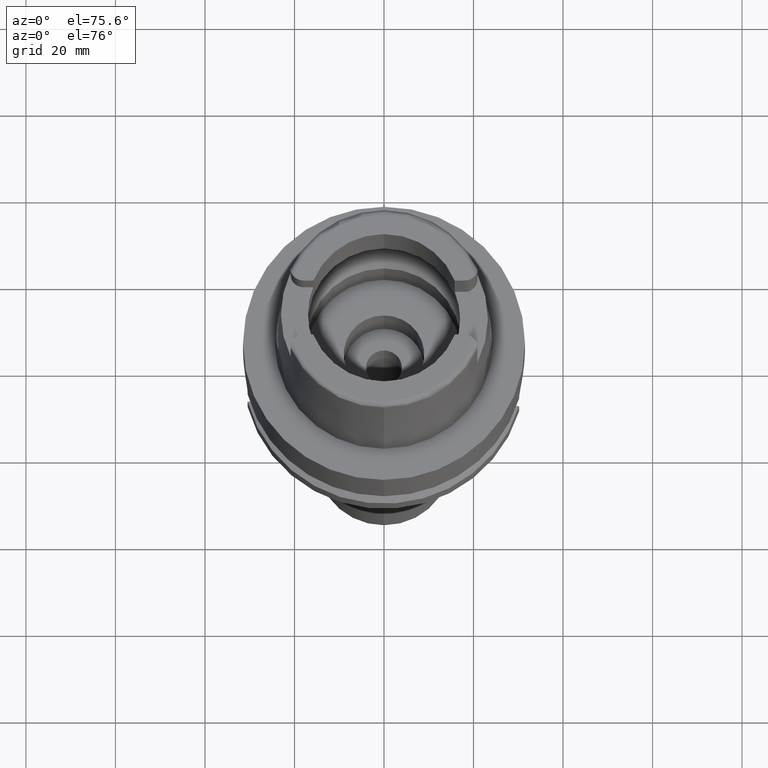
[diagram: clean part render]
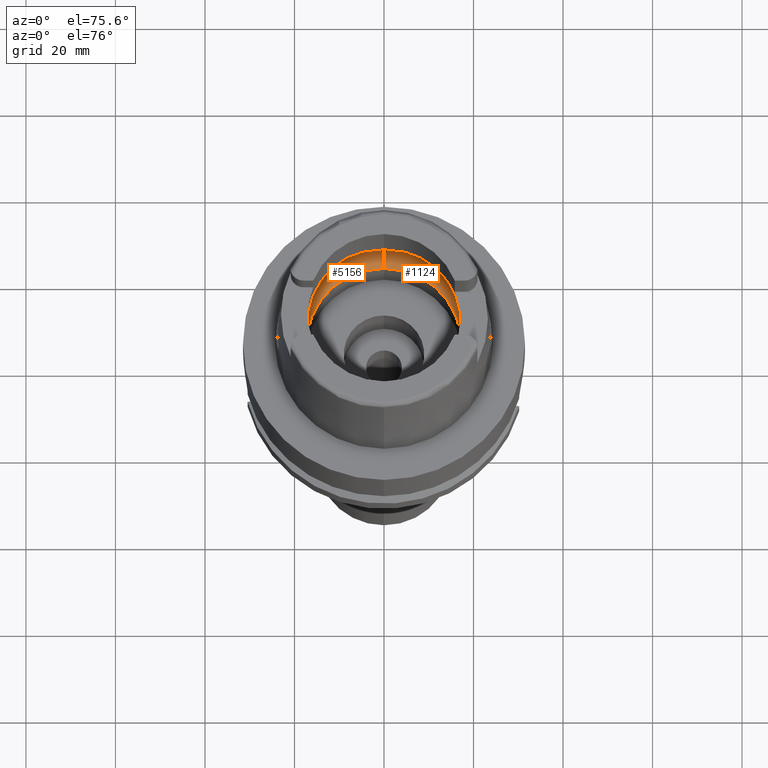
[diagram: same view with one multi-face feature highlighted, each face labeled with its STEP entity id]
A machine part, auxiliary view. The highlighted faces form ONE feature: a constant-radius fillet chain: 2 tangent blend faces with common blend radius 8 mm. The faces share edges in the B-rep.
Their STEP definitions:
[1] entity #1124 (Torus):
#67 = EDGE_CURVE ( 'NONE', #448, #3320, #285, .T. ) ;
#104 = CARTESIAN_POINT ( 'NONE',  ( 0.0000000000000000000, -20.00000000000000000, 6.186348233825000875 ) ) ;
#285 = CIRCLE ( 'NONE', #4369, 20.00000000000000000 ) ;
#288 = ORIENTED_EDGE ( 'NONE', *, *, #566, .F. ) ;
#332 = CARTESIAN_POINT ( 'NONE',  ( 0.0000000000000000000, 12.00000000000000000, 6.186348233825000875 ) ) ;
#337 = CARTESIAN_POINT ( 'NONE',  ( 19.91448538158095616, 1.610508053762637504, 5.612924102263966653 ) ) ;
#388 = CARTESIAN_POINT ( 'NONE',  ( 19.86453973035713005, 2.328737527431126608, 6.053878089965426312 ) ) ;
#448 = VERTEX_POINT ( 'NONE', #854 ) ;
#458 = CARTESIAN_POINT ( 'NONE',  ( 19.92591691872320681, -1.321755966737424792, 5.490652197696729075 ) ) ;
#508 = VERTEX_POINT ( 'NONE', #5416 ) ;
#566 = EDGE_CURVE ( 'NONE', #3320, #777, #4015, .T. ) ;
#571 = DIRECTION ( 'NONE',  ( 0.0000000000000000000, -1.000000000000000000, 0.0000000000000000000 ) ) ;
#572 = CARTESIAN_POINT ( 'NONE',  ( 19.92467627844355249, 1.358116918539703288, 5.504563131532022702 ) ) ;
#615 = ORIENTED_EDGE ( 'NONE', *, *, #4259, .F. ) ;
#767 = DIRECTION ( 'NONE',  ( 0.0000000000000000000, 0.6562500000000006661, -0.7545435292281016393 ) ) ;
#777 = VERTEX_POINT ( 'NONE', #2831 ) ;
#854 = CARTESIAN_POINT ( 'NONE',  ( 0.0000000000000000000, 20.00000000000000000, 6.186348233825000875 ) ) ;
#878 = CARTESIAN_POINT ( 'NONE',  ( 19.92840411800285594, -1.244366584479167814, 5.462313247185328180 ) ) ;
#978 = EDGE_CURVE ( 'NONE', #777, #4310, #1799, .T. ) ;
#985 = CARTESIAN_POINT ( 'NONE',  ( 0.0000000000000000000, 0.0000000000000000000, 6.186348233825000875 ) ) ;
#991 = CARTESIAN_POINT ( 'NONE',  ( 0.0000000000000000000, 0.0000000000000000000, 0.1500000000000999700 ) ) ;
#1075 = ORIENTED_EDGE ( 'NONE', *, *, #5019, .F. ) ;
#1112 = VERTEX_POINT ( 'NONE', #104 ) ;
#1124 = ADVANCED_FACE ( 'NONE', ( #3067 ), #3517, .F. ) ;
#1219 = DIRECTION ( 'NONE',  ( 0.0000000000000000000, 0.0000000000000000000, -1.000000000000000000 ) ) ;
#1385 = CARTESIAN_POINT ( 'NONE',  ( 0.0000000000000000000, 0.0000000000000000000, 6.186348233825000875 ) ) ;
#1401 = CARTESIAN_POINT ( 'NONE',  ( 19.92646951840612246, -1.305026090026948804, 5.484399317726082579 ) ) ;
#1409 = CARTESIAN_POINT ( 'NONE',  ( 19.93856675271270618, 0.9459631445367676639, 5.348221889603026469 ) ) ;
#1429 = DIRECTION ( 'NONE',  ( 0.0000000000000000000, 1.000000000000000000, 0.0000000000000000000 ) ) ;
#1474 = AXIS2_PLACEMENT_3D ( 'NONE', #2241, #3375, #5475 ) ;
#1665 = CARTESIAN_POINT ( 'NONE',  ( 19.90654459260023401, 1.770006697072565638, 5.691880654306289422 ) ) ;
#1715 = CARTESIAN_POINT ( 'NONE',  ( 19.94501428475999916, 0.4960402853743813290, 5.250000000000000888 ) ) ;
#1737 = CARTESIAN_POINT ( 'NONE',  ( 19.84575864665999845, -2.479085262491000030, 6.186348233825000875 ) ) ;
#1763 = CARTESIAN_POINT ( 'NONE',  ( 19.93096049696546856, -1.157939335591919860, 5.432578789541300246 ) ) ;
#1786 = EDGE_CURVE ( 'NONE', #4335, #1112, #2625, .T. ) ;
#1799 = B_SPLINE_CURVE_WITH_KNOTS ( 'NONE', 3,
 ( #2136, #3440, #3519, #3411, #2159, #3041, #1763, #878, #1817, #1401, #2573, #458, #4741, #3933, #1737 ),
 .UNSPECIFIED., .F., .F.,
 ( 4, 2, 2, 1, 1, 1, 2, 2, 4 ),
 ( 0.0000000000000000000, 0.2499999999999987788, 0.3749999999999982792, 0.4374999999999980571, 0.4687499999999978906, 0.4843749999999975020, 0.4921874999999975575, 0.4999999999999975575, 1.000000000000000000 ),
 .UNSPECIFIED. ) ;
#1817 = CARTESIAN_POINT ( 'NONE',  ( 19.92705981527248937, -1.286926606873724177, 5.477698152406411225 ) ) ;
#1853 = DIRECTION ( 'NONE',  ( 0.0000000000000000000, 0.0000000000000000000, 1.000000000000000000 ) ) ;
#2136 = CARTESIAN_POINT ( 'NONE',  ( 19.94501428475999916, 0.0000000000000000000, 5.250000000000000000 ) ) ;
#2159 = CARTESIAN_POINT ( 'NONE',  ( 19.93655178888372248, -0.9261198900591437466, 5.364559530321087344 ) ) ;
#2197 = DIRECTION ( 'NONE',  ( 0.0000000000000000000, 1.000000000000000000, 0.0000000000000000000 ) ) ;
#2232 = CARTESIAN_POINT ( 'NONE',  ( 19.84575864665999845, -2.479085262491000030, 6.186348233825000875 ) ) ;
#2241 = CARTESIAN_POINT ( 'NONE',  ( 0.0000000000000000000, -12.00000000000000000, 6.186348233825000875 ) ) ;
#2266 = AXIS2_PLACEMENT_3D ( 'NONE', #985, #1853, #1429 ) ;
#2463 = AXIS2_PLACEMENT_3D ( 'NONE', #3466, #1219, #4325 ) ;
#2573 = CARTESIAN_POINT ( 'NONE',  ( 19.92607283891191727, -1.317061137141596561, 5.488890315884850324 ) ) ;
#2625 = CIRCLE ( 'NONE', #1474, 7.999999999999992895 ) ;
#2662 = CARTESIAN_POINT ( 'NONE',  ( 19.92547020324161622, 1.335027099705274445, 5.495682146681705404 ) ) ;
#2687 = DIRECTION ( 'NONE',  ( 0.0000000000000000000, 0.0000000000000000000, 1.000000000000000000 ) ) ;
#2736 = AXIS2_PLACEMENT_3D ( 'NONE', #991, #2687, #571 ) ;
#2831 = CARTESIAN_POINT ( 'NONE',  ( 19.94501428475999916, 0.0000000000000000000, 5.250000000000000000 ) ) ;
#2847 = EDGE_CURVE ( 'NONE', #508, #448, #4316, .T. ) ;
#2947 = CARTESIAN_POINT ( 'NONE',  ( 19.90056795285840252, 1.871072381427654641, 5.748193827892907670 ) ) ;
#2998 = CARTESIAN_POINT ( 'NONE',  ( 19.92391571847978327, 1.379818936262329210, 5.513021260670505796 ) ) ;
#3041 = CARTESIAN_POINT ( 'NONE',  ( 19.93292500493674524, -1.081634238850528451, 5.408973163817647034 ) ) ;
#3067 = FACE_OUTER_BOUND ( 'NONE', #3922, .T. ) ;
#3154 = ORIENTED_EDGE ( 'NONE', *, *, #978, .F. ) ;
#3313 = CARTESIAN_POINT ( 'NONE',  ( 19.84575864665999845, 2.479085262491000030, 6.186348233825000875 ) ) ;
#3320 = VERTEX_POINT ( 'NONE', #4637 ) ;
#3375 = DIRECTION ( 'NONE',  ( -1.000000000000000000, 0.0000000000000000000, 0.0000000000000000000 ) ) ;
#3411 = CARTESIAN_POINT ( 'NONE',  ( 19.93856666885426776, -0.8185636124059638696, 5.338679045133562617 ) ) ;
#3440 = CARTESIAN_POINT ( 'NONE',  ( 19.94501428476000271, -0.2480012822880987844, 5.249999999999999112 ) ) ;
#3466 = CARTESIAN_POINT ( 'NONE',  ( 0.0000000000000000000, 0.0000000000000000000, 6.186348233825000875 ) ) ;
#3490 = CARTESIAN_POINT ( 'NONE',  ( 0.0000000000000000000, -17.25000000000000000, 0.1500000000000999700 ) ) ;
#3504 = DIRECTION ( 'NONE',  ( 0.0000000000000000000, 0.0000000000000000000, -1.000000000000000000 ) ) ;
#3517 = TOROIDAL_SURFACE ( 'NONE', #2266, 12.00000000000000000, 8.000000000000000000 ) ;
#3519 = CARTESIAN_POINT ( 'NONE',  ( 19.94340238078356720, -0.4850176595367738930, 5.274610361541468784 ) ) ;
#3734 = CARTESIAN_POINT ( 'NONE',  ( 19.91819973341328875, 1.528786876979157716, 5.574825955112756581 ) ) ;
#3922 = EDGE_LOOP ( 'NONE', ( #288, #5354, #4798, #1075, #4813, #615, #3154 ) ) ;
#3933 = CARTESIAN_POINT ( 'NONE',  ( 19.88332301270218849, -2.178372191595286722, 5.921392438207989883 ) ) ;
#3982 = CIRCLE ( 'NONE', #2736, 17.25000000000000000 ) ;
#4015 = B_SPLINE_CURVE_WITH_KNOTS ( 'NONE', 3,
 ( #3313, #388, #5003, #2947, #1665, #337, #3734, #4643, #2998, #572, #4748, #2662, #1409, #1715, #4304 ),
 .UNSPECIFIED., .F., .F.,
 ( 4, 2, 2, 1, 1, 1, 2, 2, 4 ),
 ( 0.0000000000000000000, 0.2500000000000098810, 0.3750000000000143774, 0.4375000000000168199, 0.4687500000000177636, 0.4843750000000178746, 0.4921875000000178191, 0.5000000000000177636, 1.000000000000000000 ),
 .UNSPECIFIED. ) ;
#4259 = EDGE_CURVE ( 'NONE', #4310, #1112, #4601, .T. ) ;
#4304 = CARTESIAN_POINT ( 'NONE',  ( 19.94501428475999916, 0.0000000000000000000, 5.250000000000000000 ) ) ;
#4310 = VERTEX_POINT ( 'NONE', #2232 ) ;
#4316 = CIRCLE ( 'NONE', #5191, 7.999999999999992895 ) ;
#4325 = DIRECTION ( 'NONE',  ( 0.9922879323327794543, -0.1239542631244973381, 0.0000000000000000000 ) ) ;
#4335 = VERTEX_POINT ( 'NONE', #3490 ) ;
#4369 = AXIS2_PLACEMENT_3D ( 'NONE', #1385, #3504, #2197 ) ;
#4601 = CIRCLE ( 'NONE', #2463, 20.00000000000001421 ) ;
#4637 = CARTESIAN_POINT ( 'NONE',  ( 19.84575864665999845, 2.479085262491000030, 6.186348233825000875 ) ) ;
#4643 = CARTESIAN_POINT ( 'NONE',  ( 19.92208506923287104, 1.430037391292800830, 5.533134286468000873 ) ) ;
#4741 = CARTESIAN_POINT ( 'NONE',  ( 19.90996060949646207, -1.795819319521763990, 5.670329520825307057 ) ) ;
#4748 = CARTESIAN_POINT ( 'NONE',  ( 19.92517798419736508, 1.343609062691706768, 5.498960846759680443 ) ) ;
#4798 = ORIENTED_EDGE ( 'NONE', *, *, #2847, .F. ) ;
#4813 = ORIENTED_EDGE ( 'NONE', *, *, #1786, .T. ) ;
#4999 = DIRECTION ( 'NONE',  ( 1.000000000000000000, 0.0000000000000000000, 0.0000000000000000000 ) ) ;
#5003 = CARTESIAN_POINT ( 'NONE',  ( 19.88058969236887918, 2.158413152842832083, 5.925203484518751118 ) ) ;
#5019 = EDGE_CURVE ( 'NONE', #4335, #508, #3982, .T. ) ;
#5191 = AXIS2_PLACEMENT_3D ( 'NONE', #332, #4999, #767 ) ;
#5354 = ORIENTED_EDGE ( 'NONE', *, *, #67, .F. ) ;
#5416 = CARTESIAN_POINT ( 'NONE',  ( 0.0000000000000000000, 17.25000000000000000, 0.1500000000000999700 ) ) ;
#5475 = DIRECTION ( 'NONE',  ( 0.0000000000000000000, -0.6562500000000006661, -0.7545435292281016393 ) ) ;
[2] entity #5156 (Torus):
#43 = EDGE_CURVE ( 'NONE', #4994, #448, #2945, .T. ) ;
#104 = CARTESIAN_POINT ( 'NONE',  ( 0.0000000000000000000, -20.00000000000000000, 6.186348233825000875 ) ) ;
#300 = CARTESIAN_POINT ( 'NONE',  ( -19.92547007504345302, -1.335031240339097369, 5.495683724100088874 ) ) ;
#326 = CARTESIAN_POINT ( 'NONE',  ( -19.94501428475999916, 0.0000000000000000000, 5.250000000000000000 ) ) ;
#332 = CARTESIAN_POINT ( 'NONE',  ( 0.0000000000000000000, 12.00000000000000000, 6.186348233825000875 ) ) ;
#448 = VERTEX_POINT ( 'NONE', #854 ) ;
#455 = ORIENTED_EDGE ( 'NONE', *, *, #2847, .T. ) ;
#508 = VERTEX_POINT ( 'NONE', #5416 ) ;
#579 = DIRECTION ( 'NONE',  ( 0.0000000000000000000, 0.0000000000000000000, -1.000000000000000000 ) ) ;
#738 = CARTESIAN_POINT ( 'NONE',  ( -19.92467615132159864, -1.358120919786871328, 5.504564686247708671 ) ) ;
#739 = EDGE_CURVE ( 'NONE', #1112, #4441, #2365, .T. ) ;
#740 = CARTESIAN_POINT ( 'NONE',  ( -19.90996073982917380, 1.795817278995830657, 5.670328124222732136 ) ) ;
#767 = DIRECTION ( 'NONE',  ( 0.0000000000000000000, 0.6562500000000006661, -0.7545435292281016393 ) ) ;
#854 = CARTESIAN_POINT ( 'NONE',  ( 0.0000000000000000000, 20.00000000000000000, 6.186348233825000875 ) ) ;
#890 = EDGE_CURVE ( 'NONE', #3397, #4994, #2599, .T. ) ;
#1016 = DIRECTION ( 'NONE',  ( 0.0000000000000000000, -1.000000000000000000, 0.0000000000000000000 ) ) ;
#1048 = CARTESIAN_POINT ( 'NONE',  ( -19.84575864665999845, 2.479085262489999941, 6.186348233825000875 ) ) ;
#1112 = VERTEX_POINT ( 'NONE', #104 ) ;
#1159 = CARTESIAN_POINT ( 'NONE',  ( -19.90654447560747542, -1.770008974173177263, 5.691881888190377659 ) ) ;
#1184 = CARTESIAN_POINT ( 'NONE',  ( -19.88058961472209774, -2.158414018199903417, 5.925204145833316893 ) ) ;
#1265 = CARTESIAN_POINT ( 'NONE',  ( -19.94340239125193293, 0.4850157974226460000, 5.274610163457148282 ) ) ;
#1417 = DIRECTION ( 'NONE',  ( -0.9922879323327794543, 0.1239542631244973381, 0.0000000000000000000 ) ) ;
#1460 = CARTESIAN_POINT ( 'NONE',  ( 0.0000000000000000000, 0.0000000000000000000, 6.186348233825000875 ) ) ;
#1461 = CIRCLE ( 'NONE', #2889, 17.25000000000000000 ) ;
#1474 = AXIS2_PLACEMENT_3D ( 'NONE', #2241, #3375, #5475 ) ;
#1494 = FACE_OUTER_BOUND ( 'NONE', #3487, .T. ) ;
#1521 = CARTESIAN_POINT ( 'NONE',  ( -19.90056784349247820, -1.871074272730828048, 5.748194928871746434 ) ) ;
#1544 = DIRECTION ( 'NONE',  ( 0.0000000000000000000, 1.000000000000000000, 0.0000000000000000000 ) ) ;
#1624 = ORIENTED_EDGE ( 'NONE', *, *, #5076, .F. ) ;
#1628 = CARTESIAN_POINT ( 'NONE',  ( -19.92840422587602944, 1.244362650384072122, 5.462311864171463860 ) ) ;
#1644 = ORIENTED_EDGE ( 'NONE', *, *, #890, .F. ) ;
#1678 = CARTESIAN_POINT ( 'NONE',  ( -19.84575864665999845, -2.479085262491000030, 6.186348233825000875 ) ) ;
#1700 = ORIENTED_EDGE ( 'NONE', *, *, #1786, .F. ) ;
#1726 = B_SPLINE_CURVE_WITH_KNOTS ( 'NONE', 3,
 ( #2857, #1969, #1184, #1521, #1159, #3646, #4477, #2881, #4139, #738, #4916, #300, #4173, #3218, #5328 ),
 .UNSPECIFIED., .F., .F.,
 ( 4, 2, 2, 1, 1, 1, 2, 2, 4 ),
 ( 0.0000000000000000000, 0.2500000000000051070, 0.3750000000000077716, 0.4375000000000091038, 0.4687500000000098255, 0.4843750000000101030, 0.4921875000000099920, 0.5000000000000098810, 1.000000000000000000 ),
 .UNSPECIFIED. ) ;
#1751 = AXIS2_PLACEMENT_3D ( 'NONE', #5350, #1993, #1544 ) ;
#1786 = EDGE_CURVE ( 'NONE', #4335, #1112, #2625, .T. ) ;
#1913 = DIRECTION ( 'NONE',  ( 0.0000000000000000000, 0.0000000000000000000, -1.000000000000000000 ) ) ;
#1969 = CARTESIAN_POINT ( 'NONE',  ( -19.86453968564131500, -2.328737885376345407, 6.053878405347992597 ) ) ;
#1993 = DIRECTION ( 'NONE',  ( 0.0000000000000000000, 0.0000000000000000000, 1.000000000000000000 ) ) ;
#1994 = CARTESIAN_POINT ( 'NONE',  ( -19.93096058823649130, 1.157935579649966629, 5.432577573767241041 ) ) ;
#2042 = EDGE_CURVE ( 'NONE', #508, #4335, #1461, .T. ) ;
#2241 = CARTESIAN_POINT ( 'NONE',  ( 0.0000000000000000000, -12.00000000000000000, 6.186348233825000875 ) ) ;
#2250 = DIRECTION ( 'NONE',  ( 0.0000000000000000000, 0.0000000000000000000, 1.000000000000000000 ) ) ;
#2365 = CIRCLE ( 'NONE', #4941, 20.00000000000000000 ) ;
#2438 = CARTESIAN_POINT ( 'NONE',  ( -19.92705993187612989, 1.286922590644232978, 5.477696685208107930 ) ) ;
#2468 = CARTESIAN_POINT ( 'NONE',  ( -19.93856671072771292, 0.8185607198028845843, 5.338678409714962214 ) ) ;
#2497 = CARTESIAN_POINT ( 'NONE',  ( -19.93292508344945801, 1.081630659659294169, 5.408972087979956989 ) ) ;
#2599 = B_SPLINE_CURVE_WITH_KNOTS ( 'NONE', 3,
 ( #3305, #5436, #1265, #2468, #3278, #2497, #1994, #1628, #2438, #4560, #4614, #4174, #740, #4140, #3726 ),
 .UNSPECIFIED., .F., .F.,
 ( 4, 2, 2, 1, 1, 1, 2, 2, 4 ),
 ( 0.0000000000000000000, 0.2499999999999956146, 0.3749999999999934497, 0.4374999999999923395, 0.4687499999999917288, 0.4843749999999914513, 0.4921874999999914513, 0.4999999999999915623, 1.000000000000000000 ),
 .UNSPECIFIED. ) ;
#2610 = DIRECTION ( 'NONE',  ( 0.0000000000000000000, 1.000000000000000000, 0.0000000000000000000 ) ) ;
#2625 = CIRCLE ( 'NONE', #1474, 7.999999999999992895 ) ;
#2626 = ORIENTED_EDGE ( 'NONE', *, *, #2042, .F. ) ;
#2847 = EDGE_CURVE ( 'NONE', #508, #448, #4316, .T. ) ;
#2857 = CARTESIAN_POINT ( 'NONE',  ( -19.84575864665999845, -2.479085262491000030, 6.186348233825000875 ) ) ;
#2881 = CARTESIAN_POINT ( 'NONE',  ( -19.92208494194046509, -1.430041077684033990, 5.533135808937241329 ) ) ;
#2889 = AXIS2_PLACEMENT_3D ( 'NONE', #4432, #2250, #2610 ) ;
#2945 = CIRCLE ( 'NONE', #4363, 20.00000000000001421 ) ;
#3126 = ORIENTED_EDGE ( 'NONE', *, *, #43, .F. ) ;
#3218 = CARTESIAN_POINT ( 'NONE',  ( -19.94501428475999560, -0.4960423020627297008, 5.249999999999995559 ) ) ;
#3278 = CARTESIAN_POINT ( 'NONE',  ( -19.93655184384261858, 0.9261166967963114782, 5.364558725656097593 ) ) ;
#3305 = CARTESIAN_POINT ( 'NONE',  ( -19.94501428475999916, 0.0000000000000000000, 5.250000000000000000 ) ) ;
#3375 = DIRECTION ( 'NONE',  ( -1.000000000000000000, 0.0000000000000000000, 0.0000000000000000000 ) ) ;
#3397 = VERTEX_POINT ( 'NONE', #326 ) ;
#3487 = EDGE_LOOP ( 'NONE', ( #5208, #1700, #2626, #455, #3126, #1644, #1624 ) ) ;
#3490 = CARTESIAN_POINT ( 'NONE',  ( 0.0000000000000000000, -17.25000000000000000, 0.1500000000000999700 ) ) ;
#3646 = CARTESIAN_POINT ( 'NONE',  ( -19.91448525756728927, -1.610510976265786987, 5.612925495665686881 ) ) ;
#3726 = CARTESIAN_POINT ( 'NONE',  ( -19.84575864665999845, 2.479085262489999941, 6.186348233825000875 ) ) ;
#4139 = CARTESIAN_POINT ( 'NONE',  ( -19.92391559123418787, -1.379822842001579009, 5.513022806674898746 ) ) ;
#4140 = CARTESIAN_POINT ( 'NONE',  ( -19.88332310116147283, 2.178371483505385786, 5.921391814315846602 ) ) ;
#4173 = CARTESIAN_POINT ( 'NONE',  ( -19.93856671042052398, -0.9459665778997381480, 5.348222674928019060 ) ) ;
#4174 = CARTESIAN_POINT ( 'NONE',  ( -19.92591704426989452, 1.321751840890049490, 5.490650643677390974 ) ) ;
#4316 = CIRCLE ( 'NONE', #5191, 7.999999999999992895 ) ;
#4335 = VERTEX_POINT ( 'NONE', #3490 ) ;
#4363 = AXIS2_PLACEMENT_3D ( 'NONE', #5223, #579, #1417 ) ;
#4428 = TOROIDAL_SURFACE ( 'NONE', #1751, 12.00000000000000000, 8.000000000000000000 ) ;
#4432 = CARTESIAN_POINT ( 'NONE',  ( 0.0000000000000000000, 0.0000000000000000000, 0.1500000000000999700 ) ) ;
#4441 = VERTEX_POINT ( 'NONE', #1678 ) ;
#4477 = CARTESIAN_POINT ( 'NONE',  ( -19.91819960699401193, -1.528790138807751164, 5.574827418276589341 ) ) ;
#4560 = CARTESIAN_POINT ( 'NONE',  ( -19.92646963884338263, 1.305022040076338818, 5.484397814373272340 ) ) ;
#4614 = CARTESIAN_POINT ( 'NONE',  ( -19.92607296192538513, 1.317057065037986030, 5.488888788417265907 ) ) ;
#4916 = CARTESIAN_POINT ( 'NONE',  ( -19.92517785718085577, -1.343613127942956842, 5.498962406970089312 ) ) ;
#4941 = AXIS2_PLACEMENT_3D ( 'NONE', #1460, #1913, #1016 ) ;
#4994 = VERTEX_POINT ( 'NONE', #1048 ) ;
#4999 = DIRECTION ( 'NONE',  ( 1.000000000000000000, 0.0000000000000000000, 0.0000000000000000000 ) ) ;
#5076 = EDGE_CURVE ( 'NONE', #4441, #3397, #1726, .T. ) ;
#5156 = ADVANCED_FACE ( 'NONE', ( #1494 ), #4428, .F. ) ;
#5191 = AXIS2_PLACEMENT_3D ( 'NONE', #332, #4999, #767 ) ;
#5208 = ORIENTED_EDGE ( 'NONE', *, *, #739, .F. ) ;
#5223 = CARTESIAN_POINT ( 'NONE',  ( 0.0000000000000000000, 0.0000000000000000000, 6.186348233825000875 ) ) ;
#5328 = CARTESIAN_POINT ( 'NONE',  ( -19.94501428475999916, 0.0000000000000000000, 5.250000000000000000 ) ) ;
#5350 = CARTESIAN_POINT ( 'NONE',  ( 0.0000000000000000000, 0.0000000000000000000, 6.186348233825000875 ) ) ;
#5416 = CARTESIAN_POINT ( 'NONE',  ( 0.0000000000000000000, 17.25000000000000000, 0.1500000000000999700 ) ) ;
#5436 = CARTESIAN_POINT ( 'NONE',  ( -19.94501428476000271, 0.2480002814738951344, 5.249999999999999112 ) ) ;
#5475 = DIRECTION ( 'NONE',  ( 0.0000000000000000000, -0.6562500000000006661, -0.7545435292281016393 ) ) ;